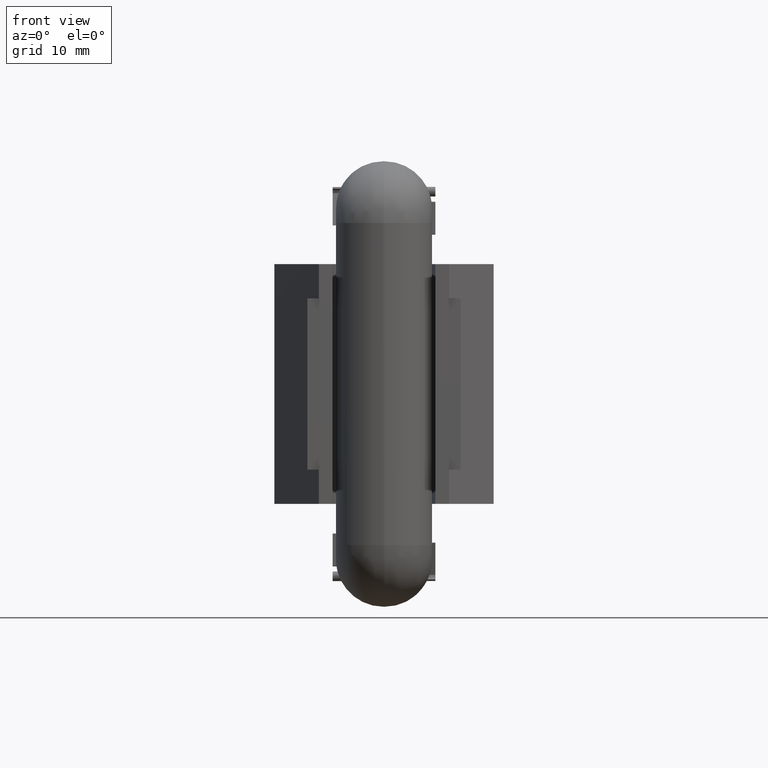
[diagram: clean part render]
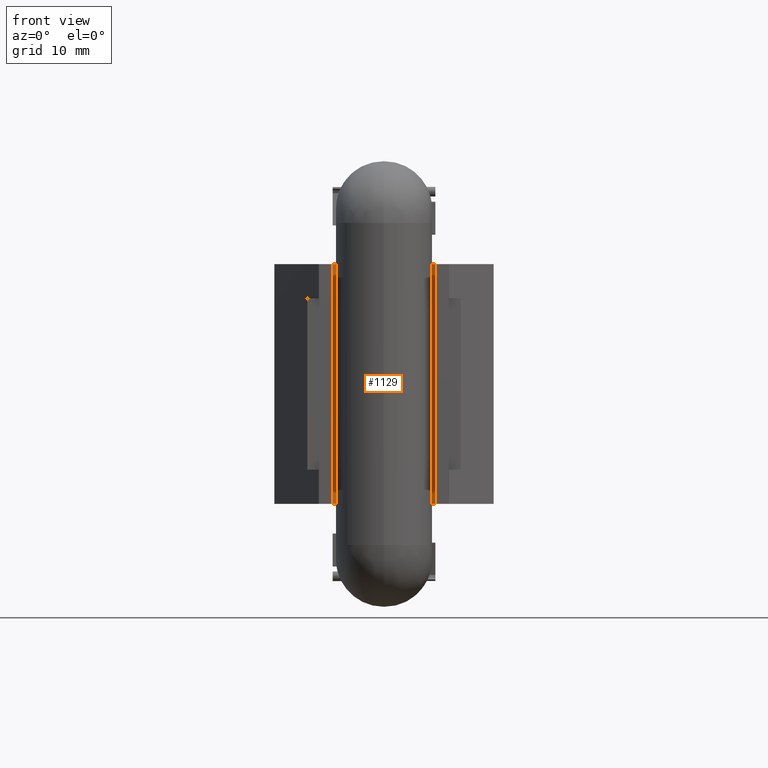
[diagram: same view with one face highlighted and labeled with its STEP entity id]
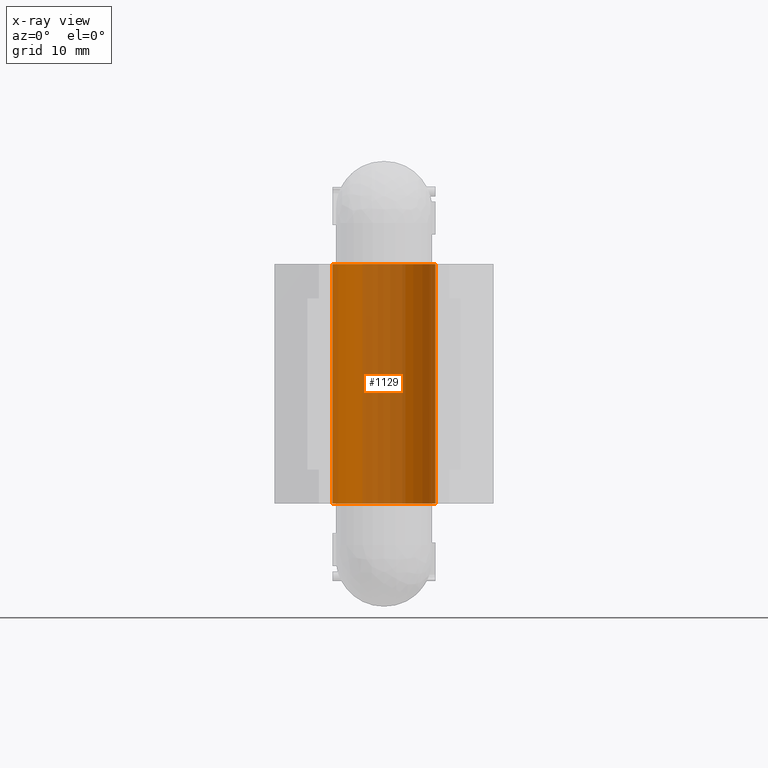
[diagram: x-ray of the same camera — body ghosted, the highlighted face saturated]
A machine part, front view. The second image highlights one B-rep face of the part: STEP entity #1129.
The next image is the same camera in x-ray: the body ghosted, the highlighted face saturated — about 42% of this face is hidden behind the body in this view.
In plain terms, the highlighted cylindrical surface (partial cylindrical patch) has radius 7.5 mm, axis along (0, 0, -1).
Its self-contained STEP definition (entity closure, byte-faithful):
#1058=CYLINDRICAL_SURFACE('',#8930,7.5);
#1129=ADVANCED_FACE('',(#1837),#1058,.F.);
#1837=FACE_OUTER_BOUND('',#2289,.T.);
#2289=EDGE_LOOP('',(#2982,#2983,#2984,#2985));
#2772=CIRCLE('',#8911,7.5);
#2775=CIRCLE('',#8915,7.5);
#2982=ORIENTED_EDGE('',*,*,#6392,.T.);
#2983=ORIENTED_EDGE('',*,*,#6427,.F.);
#2984=ORIENTED_EDGE('',*,*,#6377,.F.);
#2985=ORIENTED_EDGE('',*,*,#6426,.T.);
#5517=VERTEX_POINT('',#11120);
#5518=VERTEX_POINT('',#11122);
#5532=VERTEX_POINT('',#11151);
#5533=VERTEX_POINT('',#11153);
#6377=EDGE_CURVE('',#5517,#5518,#2772,.T.);
#6392=EDGE_CURVE('',#5533,#5532,#2775,.T.);
#6426=EDGE_CURVE('',#5517,#5533,#7726,.T.);
#6427=EDGE_CURVE('',#5518,#5532,#7727,.T.);
#7726=LINE('',#11216,#8264);
#7727=LINE('',#11218,#8265);
#8264=VECTOR('',#9499,1.);
#8265=VECTOR('',#9502,1.);
#8911=AXIS2_PLACEMENT_3D('',#11121,#9418,#9419);
#8915=AXIS2_PLACEMENT_3D('',#11152,#9438,#9439);
#8930=AXIS2_PLACEMENT_3D('',#11219,#9503,#9504);
#9418=DIRECTION('',(0.,0.,-1.));
#9419=DIRECTION('',(1.,2.31296463463574E-16,0.));
#9438=DIRECTION('',(0.,0.,-1.));
#9439=DIRECTION('',(1.,2.31296463463574E-16,0.));
#9499=DIRECTION('',(0.,0.,-1.));
#9502=DIRECTION('',(0.,0.,-1.));
#9503=DIRECTION('',(0.,0.,-1.));
#9504=DIRECTION('',(-1.,0.,0.));
#11120=CARTESIAN_POINT('',(-7.5,9.,17.5));
#11121=CARTESIAN_POINT('',(0.,9.,17.5));
#11122=CARTESIAN_POINT('',(7.5,9.,17.5));
#11151=CARTESIAN_POINT('',(7.5,9.,-17.5));
#11152=CARTESIAN_POINT('',(0.,9.,-17.5));
#11153=CARTESIAN_POINT('',(-7.5,9.,-17.5));
#11216=CARTESIAN_POINT('',(-7.5,9.,17.5));
#11218=CARTESIAN_POINT('',(7.5,9.,17.5));
#11219=CARTESIAN_POINT('',(0.,9.,17.5));